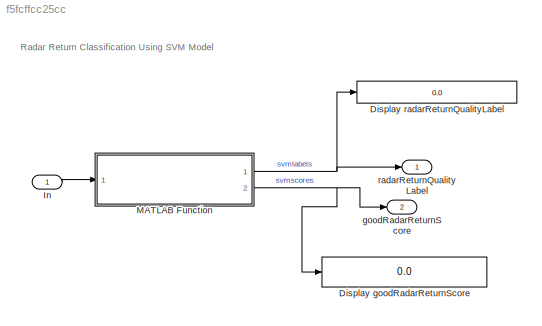
MODEL slx_f5fcffcc25cc
KIND model
CONFIG AbsTol = auto
CONFIG EnableMultiTasking = off
CONFIG FixedStep = 1
CONFIG MaxStep = auto
CONFIG MinStep = auto
CONFIG PreLoadFcn = load(fullfile(matlabroot,'help','toolbox','stats','examples','radarReturnInput.mat'))
CONFIG RelTol = 1e-3
CONFIG SampleTimeConstraint = Unconstrained
CONFIG Solver = FixedStepDiscrete
CONFIG SolverName = FixedStepDiscrete
CONFIG StartTime = 0.0
CONFIG StopTime = radarReturnInput.time(end)
BLOCK [Display] Display goodRadarReturnScore
  Decimation = 1
  Ports = [1]
BLOCK [Display] Display radarReturnQualityLabel
  Decimation = 1
  Ports = [1]
BLOCK [Inport] In
  IconDisplay = Port number
  PortDimensions = [34]
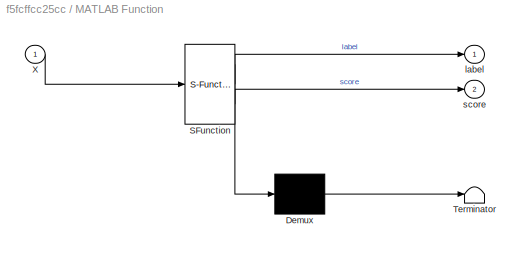
BLOCK [SubSystem] MATLAB Function
  ErrorFcn = Stateflow.Translate.translate
  PermitHierarchicalResolution = ExplicitOnly
  Ports = [1, 2]
  RequestExecContextInheritance = off
  SFBlockType = MATLAB Function
  TreatAsAtomicUnit = on
  Variant = off
BLOCK [Demux] MATLAB Function/ Demux 
  Outputs = 1
  Ports = [1, 1]
BLOCK [S-Function] MATLAB Function/ SFunction 
  EnableBusSupport = on
  FunctionName = sf_sfun
  PortCounts = [1 3]
  Ports = [1, 3]
  SFcnIsStateOwnerBlock = off
  SFunctionDeploymentMode = off
  Tag = Stateflow S-Function slexSVMIonospherePredictExample 1
BLOCK [Terminator] MATLAB Function/ Terminator 
BLOCK [Inport] MATLAB Function/X
  IconDisplay = Port number
BLOCK [Outport] MATLAB Function/label
  IconDisplay = Port number
BLOCK [Outport] MATLAB Function/score
  IconDisplay = Port number
  Port = 2
BLOCK [Outport] goodRadarReturnScore
  IconDisplay = Port number
  Port = 2
BLOCK [Outport] radarReturnQualityLabel
  IconDisplay = Port number
ANNOTATION (root): Radar Return Classification Using SVM Model
LINE In:1 -> MATLAB Function:1
NET MATLAB Function:1 -> Display radarReturnQualityLabel:1, radarReturnQualityLabel:1
NET MATLAB Function:2 -> Display goodRadarReturnScore:1, goodRadarReturnScore:1
note: NET lines group one-source signal fan-out (src -> all destinations, sorted); 1:1 wires keep LINE
CHART MATLAB Function states=1 transitions=1
  STATE_LABEL 'eML_blk_kernel()'
  STATE_LABEL 'SCRIPT:\nfunction [label,score] = svmIonospherePredict(X) %#codegen\n%svmIonospherePredict Predict radar-return quality using SVM model\n%   svmIonospherePredict predicts labels and estimates classification\n%   scores of the radar returns in the numeric matrix of preditor data X\n%   using the compact SVM model in the file SVMIonosphere.mat.  Rows of X\n%   correspond to observations and columns to pre...<+287ch>'
